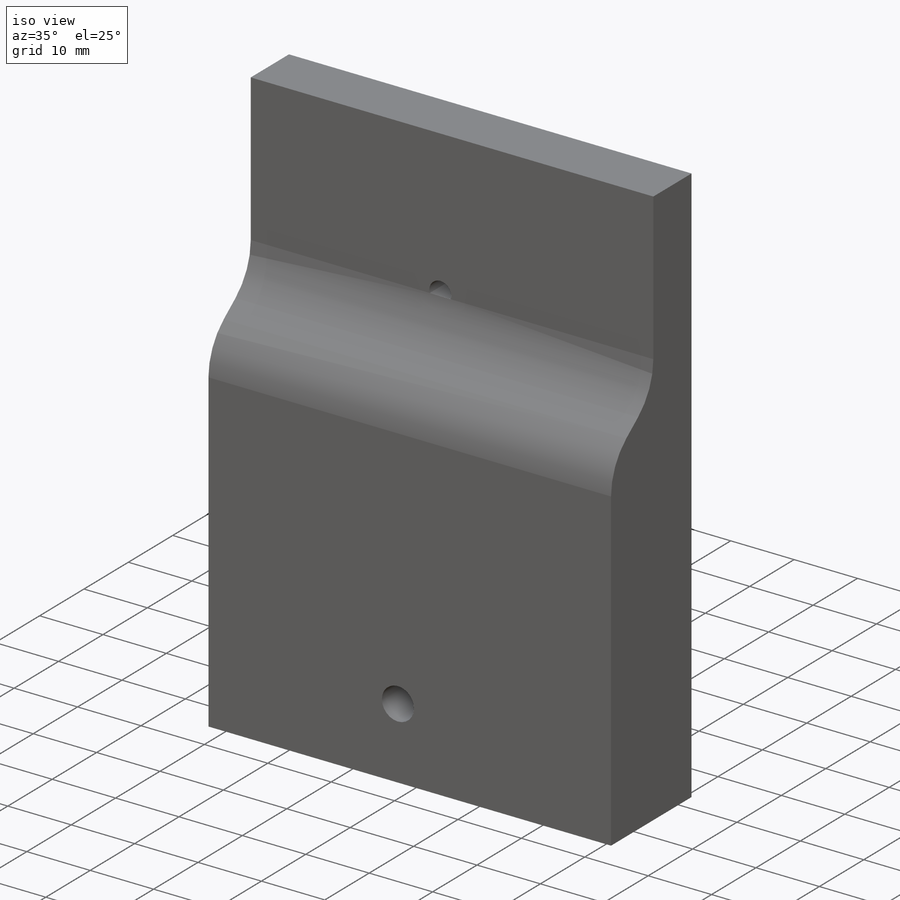
[diagram: iso view]
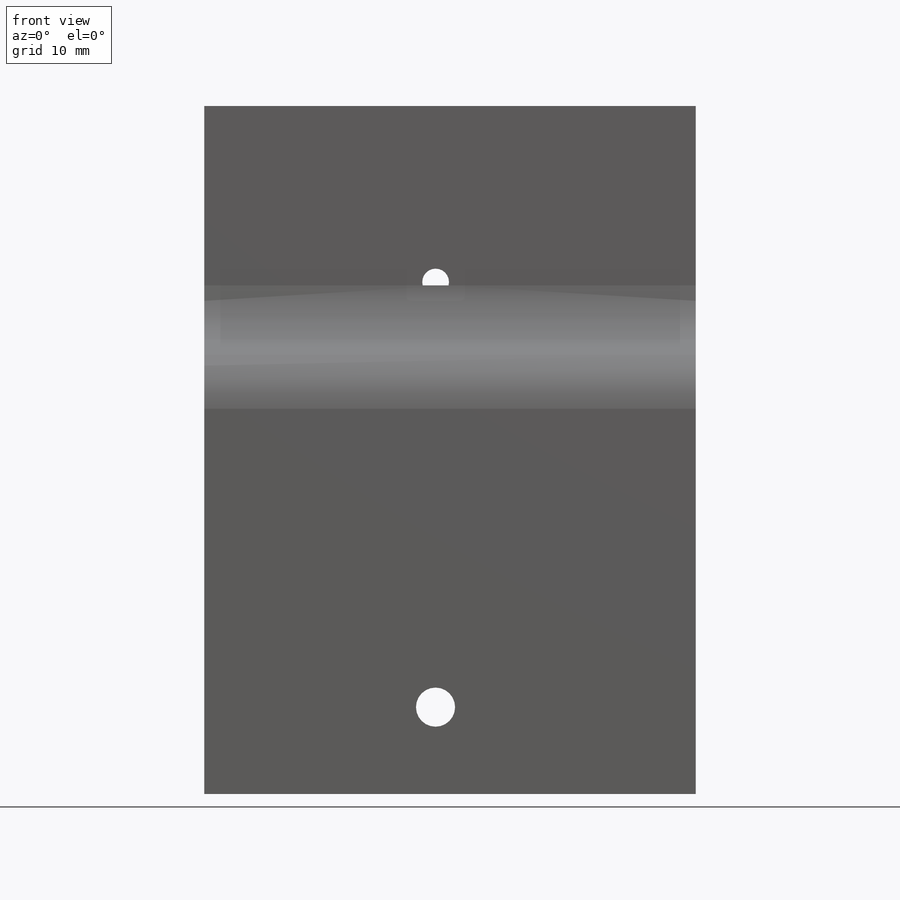
[diagram: front view]
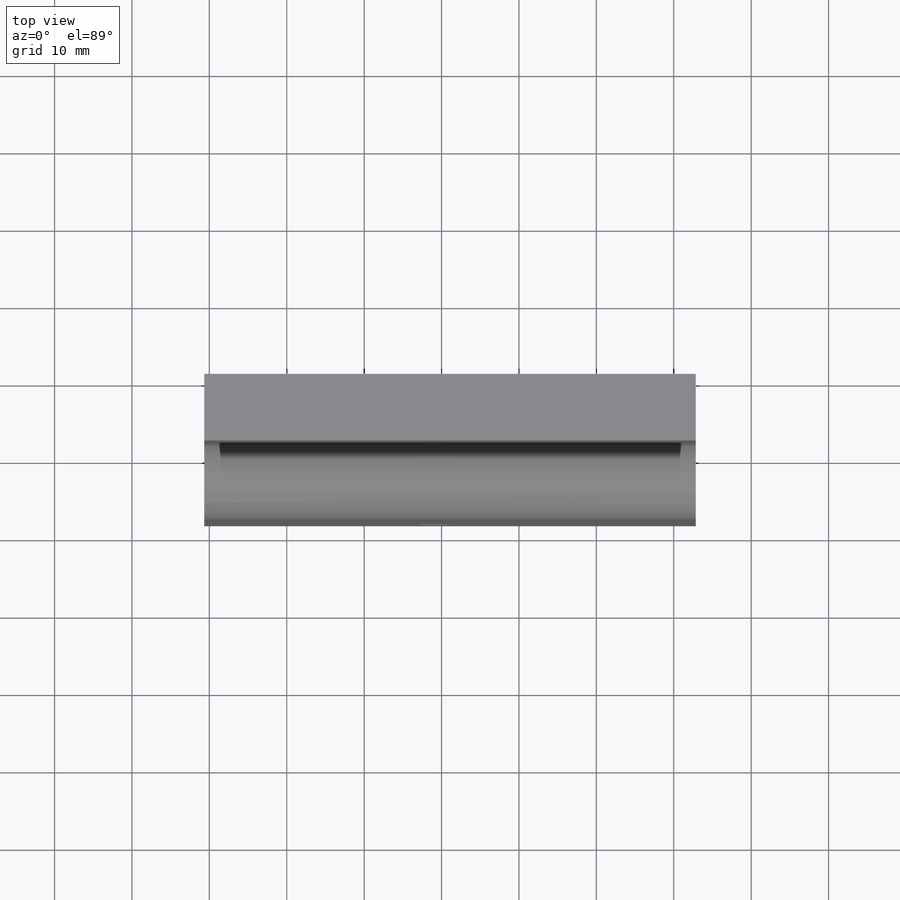
[diagram: top view]
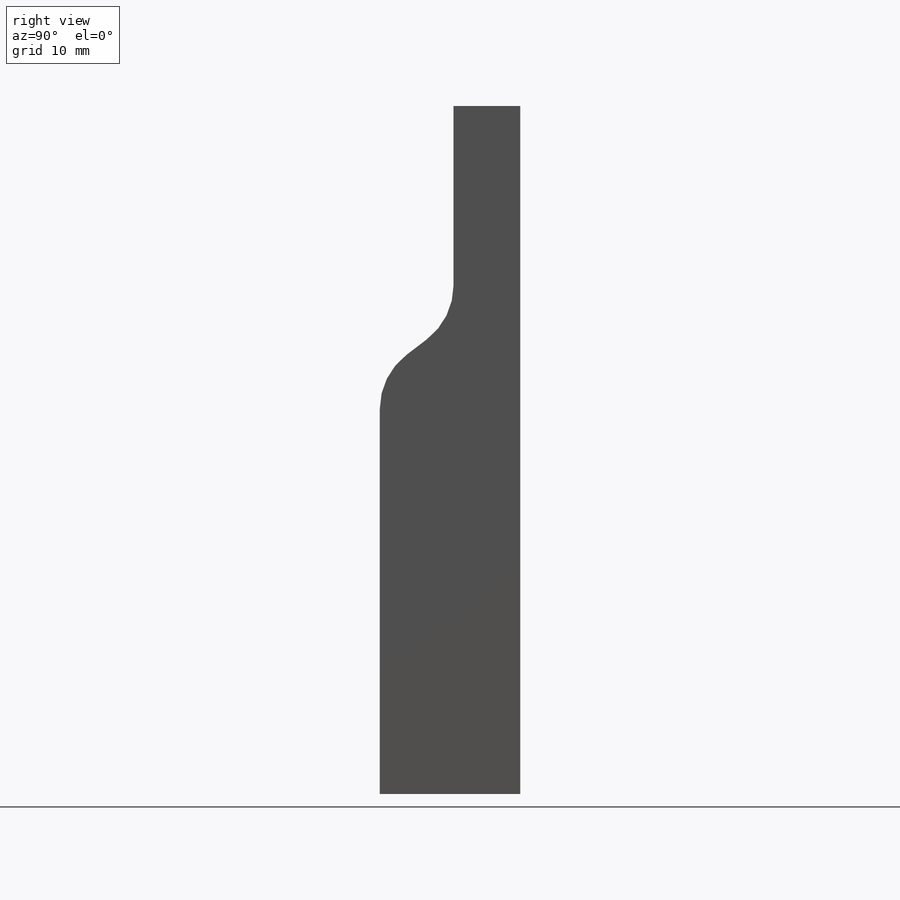
[diagram: right view]
SOLIDWORKS PART (.sldprt)
format: sldprt  version: not decoded by parser v0  size: 581,632 bytes
history: native  units: mm
features: extrude x225, sketch x9, cut_extrude x3, hole x2, material x1 (+14 scaffold rows collapsed; 1 parser-record rows omitted)
feature tree (255):
  scaffold x14  (default folders/planes/origin — collapsed)
  material  "Material <not specified>"
  sketch  "Sketch1"  dims[D1=88.9mm D2=63.5mm]
  extrude  "Boss-Extrude1"  [1 undecoded]
  sketch  "Sketch2"
  cut_extrude  "Cut-Extrude1"  Depth=38 _TNextInd=38
  extrude  "_TElemType"  [1 undecoded]
  extrude  "_TCompTag"  [1 undecoded]
  extrude  "_TNextInd"  [1 undecoded]
  extrude  "_TElemType"  [1 undecoded]
  extrude  "_TCompTag"  [1 undecoded]
  extrude  "_TElemType"  [1 undecoded]
  extrude  "_TID1"  [1 undecoded]
  extrude  "_TCompTag"  [1 undecoded]
  cut_extrude  "_TAttDefEntBased2"  [1 undecoded]
  extrude  "_TElemType"  [1 undecoded]
  extrude  "_TID1"  [1 undecoded]
  extrude  "_TCompTag"  [1 undecoded]
  extrude  "_TElemType"  [1 undecoded]
  extrude  "_TID1"  [1 undecoded]
  extrude  "_TCompTag"  [1 undecoded]
  extrude  "_TElemType"  [1 undecoded]
  extrude  "_TID1"  [1 undecoded]
  extrude  "_TCompTag"  [1 undecoded]
  extrude  "_TElemType"  [1 undecoded]
  extrude  "_TElemTag"  [1 undecoded]
  extrude  "_TID1"  [1 undecoded]
  extrude  "_TID2"  [1 undecoded]
  extrude  "_TSegmType"  [1 undecoded]
  extrude  "_TCompTag"  [1 undecoded]
  cut_extrude  "_TAttDefNameBased2"  [1 undecoded]
  extrude  "_TElemType"  [1 undecoded]
  extrude  "_TElemTag"  [1 undecoded]
  extrude  "_TID1"  [1 undecoded]
  extrude  "_TID2"  [1 undecoded]
  extrude  "_TSegmType"  [1 undecoded]
  extrude  "_TCompTag"  [1 undecoded]
  extrude  "_TElemType"  [1 undecoded]
  extrude  "_TElemTag"  [1 undecoded]
  extrude  "_TID1"  [1 undecoded]
  extrude  "_TID2"  [1 undecoded]
  extrude  "_TSegmType"  [1 undecoded]
  extrude  "_TCompTag"  [1 undecoded]
  parser-record x1  (decoder bookkeeping rows leaked as tree rows — omitted from the tree; the rows remain in map.json)
  sketch  "Sketch_MAC1-1_PART1_MILLING"
  sketch  "Stock_PART1_MILLING"
  extrude  "_TElemType"  [1 undecoded]
  extrude  "_TElemTag"  [1 undecoded]
  extrude  "_TID1"  [1 undecoded]
  extrude  "_TID2"  [1 undecoded]
  extrude  "_TSegmType"  [1 undecoded]
  extrude  "_TCompTag"  [1 undecoded]
  extrude  "_TElemType"  [1 undecoded]
  extrude  "_TElemTag"  [1 undecoded]
  extrude  "_TID1"  [1 undecoded]
  extrude  "_TID2"  [1 undecoded]
  extrude  "_TSegmType"  [1 undecoded]
  extrude  "_TCompTag"  [1 undecoded]
  extrude  "_TElemType"  [1 undecoded]
  extrude  "_TID1"  [1 undecoded]
  extrude  "_TCompTag"  [1 undecoded]
  extrude  "_TElemType"  [1 undecoded]
  extrude  "_TID1"  [1 undecoded]
  extrude  "_TCompTag"  [1 undecoded]
  extrude  "_TElemType"  [1 undecoded]
  extrude  "_TID1"  [1 undecoded]
  extrude  "_TCompTag"  [1 undecoded]
  extrude  "_TElemType"  [1 undecoded]
  extrude  "_TID1"  [1 undecoded]
  extrude  "_TCompTag"  [1 undecoded]
  extrude  "_TElemType"  [1 undecoded]
  extrude  "_TID1"  [1 undecoded]
  extrude  "_TCompTag"  [1 undecoded]
  extrude  "_TElemType"  [1 undecoded]
  extrude  "_TID1"  [1 undecoded]
  extrude  "_TCompTag"  [1 undecoded]
  extrude  "_TElemType"  [1 undecoded]
  extrude  "_TID1"  [1 undecoded]
  extrude  "_TCompTag"  [1 undecoded]
  extrude  "_TElemType"  [1 undecoded]
  extrude  "_TID1"  [1 undecoded]
  extrude  "_TCompTag"  [1 undecoded]
  extrude  "_TElemType"  [1 undecoded]
  extrude  "_TID1"  [1 undecoded]
  extrude  "_TCompTag"  [1 undecoded]
  extrude  "_TElemType"  [1 undecoded]
  extrude  "_TID1"  [1 undecoded]
  extrude  "_TCompTag"  [1 undecoded]
  hole  "#29 (0.136) Diameter Hole1"  Diameter=3.4544mm Depth=8.61368mm
  sketch  "Sketch6"
  sketch  "Sketch5"  dims[hole-wizard template sketch: 60 standard entries collapsed; hole parameters kept: c18.Thru Hole Depth=~8.61368mm]
  hole  "#8 (0.199) Diameter Hole1"  Diameter=5.0546mm Depth=18.13868mm
  sketch  "Sketch8"
  sketch  "Sketch7"  dims[hole-wizard template sketch: 60 standard entries collapsed; hole parameters kept: c18.Thru Hole Depth=~18.13868mm]
  extrude  "_TElemType"  [1 undecoded]
  extrude  "_TID1"  [1 undecoded]
  extrude  "_TCompTag"  [1 undecoded]
  extrude  "_TElemType"  [1 undecoded]
  extrude  "_TID1"  [1 undecoded]
  extrude  "_TCompTag"  [1 undecoded]
  extrude  "_TElemType"  [1 undecoded]
  extrude  "_TID1"  [1 undecoded]
  extrude  "_TCompTag"  [1 undecoded]
  extrude  "_TElemType"  [1 undecoded]
  extrude  "_TID1"  [1 undecoded]
  extrude  "_TCompTag"  [1 undecoded]
  extrude  "_TElemType"  [1 undecoded]
  extrude  "_TElemTag"  [1 undecoded]
  extrude  "_TID1"  [1 undecoded]
  extrude  "_TID2"  [1 undecoded]
  extrude  "_TSegmType"  [1 undecoded]
  extrude  "_TCompTag"  [1 undecoded]
  extrude  "_TElemType"  [1 undecoded]
  extrude  "_TElemTag"  [1 undecoded]
  extrude  "_TID1"  [1 undecoded]
  extrude  "_TID2"  [1 undecoded]
  extrude  "_TSegmType"  [1 undecoded]
  extrude  "_TCompTag"  [1 undecoded]
  extrude  "_TElemType"  [1 undecoded]
  extrude  "_TElemTag"  [1 undecoded]
  extrude  "_TID1"  [1 undecoded]
  extrude  "_TID2"  [1 undecoded]
  extrude  "_TSegmType"  [1 undecoded]
  extrude  "_TCompTag"  [1 undecoded]
  extrude  "_TElemType"  [1 undecoded]
  extrude  "_TElemTag"  [1 undecoded]
  extrude  "_TID1"  [1 undecoded]
  extrude  "_TID2"  [1 undecoded]
  extrude  "_TSegmType"  [1 undecoded]
  extrude  "_TCompTag"  [1 undecoded]
  extrude  "_TElemType"  [1 undecoded]
  extrude  "_TElemTag"  [1 undecoded]
  extrude  "_TID1"  [1 undecoded]
  extrude  "_TID2"  [1 undecoded]
  extrude  "_TSegmType"  [1 undecoded]
  extrude  "_TCompTag"  [1 undecoded]
  extrude  "_TElemType"  [1 undecoded]
  extrude  "_TElemTag"  [1 undecoded]
  extrude  "_TID1"  [1 undecoded]
  extrude  "_TID2"  [1 undecoded]
  extrude  "_TSegmType"  [1 undecoded]
  extrude  "_TCompTag"  [1 undecoded]
  extrude  "_TElemType"  [1 undecoded]
  extrude  "_TElemTag"  [1 undecoded]
  extrude  "_TID1"  [1 undecoded]
  extrude  "_TID2"  [1 undecoded]
  extrude  "_TSegmType"  [1 undecoded]
  extrude  "_TCompTag"  [1 undecoded]
  extrude  "_TElemType"  [1 undecoded]
  extrude  "_TElemTag"  [1 undecoded]
  extrude  "_TID1"  [1 undecoded]
  extrude  "_TID2"  [1 undecoded]
  extrude  "_TSegmType"  [1 undecoded]
  extrude  "_TCompTag"  [1 undecoded]
  sketch  "Sketch9"
  extrude  "_TElemType"  [1 undecoded]
  extrude  "_TElemTag"  [1 undecoded]
  extrude  "_TID1"  [1 undecoded]
  extrude  "_TID2"  [1 undecoded]
  extrude  "_TSegmType"  [1 undecoded]
  extrude  "_TCompTag"  [1 undecoded]
  extrude  "_TElemType"  [1 undecoded]
  extrude  "_TElemTag"  [1 undecoded]
  extrude  "_TID1"  [1 undecoded]
  extrude  "_TID2"  [1 undecoded]
  extrude  "_TSegmType"  [1 undecoded]
  extrude  "_TCompTag"  [1 undecoded]
  extrude  "_TElemType"  [1 undecoded]
  extrude  "_TElemTag"  [1 undecoded]
  extrude  "_TID1"  [1 undecoded]
  extrude  "_TID2"  [1 undecoded]
  extrude  "_TSegmType"  [1 undecoded]
  extrude  "_TCompTag"  [1 undecoded]
  extrude  "_TElemType"  [1 undecoded]
  extrude  "_TElemTag"  [1 undecoded]
  extrude  "_TID1"  [1 undecoded]
  extrude  "_TID2"  [1 undecoded]
  extrude  "_TSegmType"  [1 undecoded]
  extrude  "_TCompTag"  [1 undecoded]
  extrude  "_TElemType"  [1 undecoded]
  extrude  "_TElemTag"  [1 undecoded]
  extrude  "_TID1"  [1 undecoded]
  extrude  "_TID2"  [1 undecoded]
  extrude  "_TSegmType"  [1 undecoded]
  extrude  "_TCompTag"  [1 undecoded]
  extrude  "_TElemType"  [1 undecoded]
  extrude  "_TElemTag"  [1 undecoded]
  extrude  "_TID1"  [1 undecoded]
  extrude  "_TID2"  [1 undecoded]
  extrude  "_TSegmType"  [1 undecoded]
  extrude  "_TCompTag"  [1 undecoded]
  extrude  "_TElemType"  [1 undecoded]
  extrude  "_TElemTag"  [1 undecoded]
  extrude  "_TID1"  [1 undecoded]
  extrude  "_TID2"  [1 undecoded]
  extrude  "_TSegmType"  [1 undecoded]
  extrude  "_TCompTag"  [1 undecoded]
  extrude  "_TElemType"  [1 undecoded]
  extrude  "_TElemTag"  [1 undecoded]
  extrude  "_TID1"  [1 undecoded]
  extrude  "_TID2"  [1 undecoded]
  extrude  "_TSegmType"  [1 undecoded]
  extrude  "_TCompTag"  [1 undecoded]
  extrude  "_TElemType"  [1 undecoded]
  extrude  "_TElemTag"  [1 undecoded]
  extrude  "_TID1"  [1 undecoded]
  extrude  "_TID2"  [1 undecoded]
  extrude  "_TSegmType"  [1 undecoded]
  extrude  "_TCompTag"  [1 undecoded]
  extrude  "_TElemType"  [1 undecoded]
  extrude  "_TElemTag"  [1 undecoded]
  extrude  "_TID1"  [1 undecoded]
  extrude  "_TID2"  [1 undecoded]
  extrude  "_TSegmType"  [1 undecoded]
  extrude  "_TCompTag"  [1 undecoded]
  extrude  "_TElemType"  [1 undecoded]
  extrude  "_TID1"  [1 undecoded]
  extrude  "_TCompTag"  [1 undecoded]
  extrude  "_TElemType"  [1 undecoded]
  extrude  "_TID1"  [1 undecoded]
  extrude  "_TCompTag"  [1 undecoded]
  extrude  "_TElemType"  [1 undecoded]
  extrude  "_TID1"  [1 undecoded]
  extrude  "_TCompTag"  [1 undecoded]
  extrude  "_TElemType"  [1 undecoded]
  extrude  "_TID1"  [1 undecoded]
  extrude  "_TCompTag"  [1 undecoded]
  extrude  "_TElemType"  [1 undecoded]
  extrude  "_TID1"  [1 undecoded]
  extrude  "_TCompTag"  [1 undecoded]
  extrude  "_TElemType"  [1 undecoded]
  extrude  "_TID1"  [1 undecoded]
  extrude  "_TCompTag"  [1 undecoded]
  extrude  "_TElemType"  [1 undecoded]
  extrude  "_TID1"  [1 undecoded]
  extrude  "_TCompTag"  [1 undecoded]
  extrude  "_TElemType"  [1 undecoded]
  extrude  "_TID1"  [1 undecoded]
  extrude  "_TCompTag"  [1 undecoded]
  extrude  "_TElemType"  [1 undecoded]
  extrude  "_TID1"  [1 undecoded]
  extrude  "_TCompTag"  [1 undecoded]
decode coverage: 6 of 239 modeling features carry decoded parameters
note: ~ marks probable driven/reference dimensions
note: 227 parameter values undecoded
summary: no parameter record found for 227 features
note: suppression state not decoded; provenance and decode notes live in map.json
